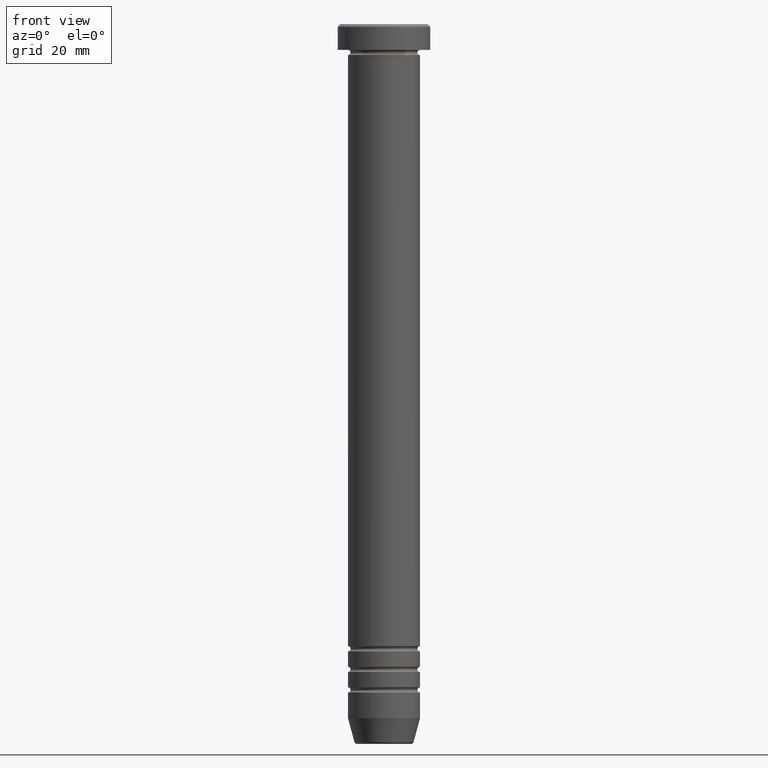
[diagram: clean part render]
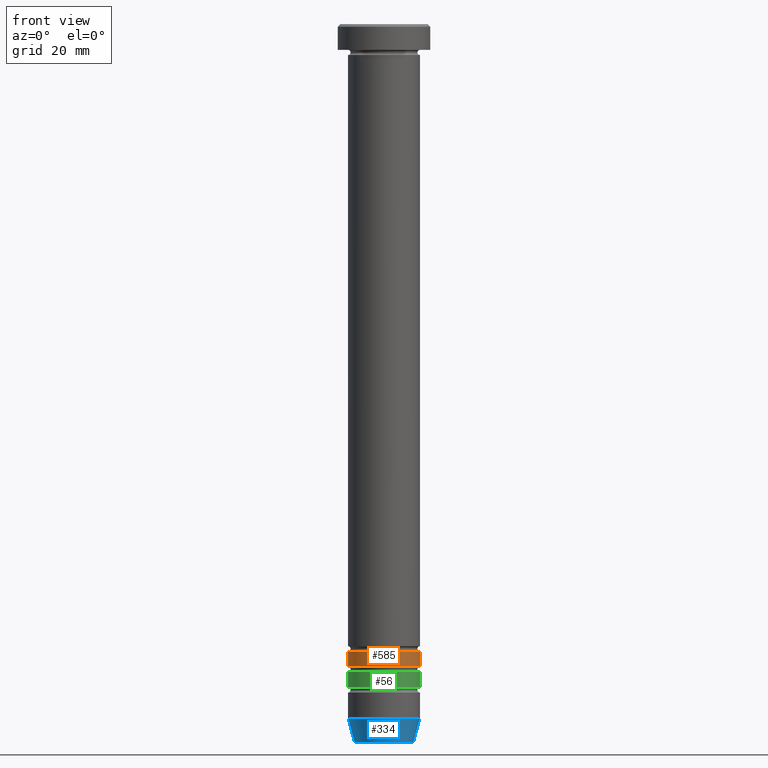
[diagram: same view with three faces highlighted in distinct colors, each labeled with its STEP entity id]
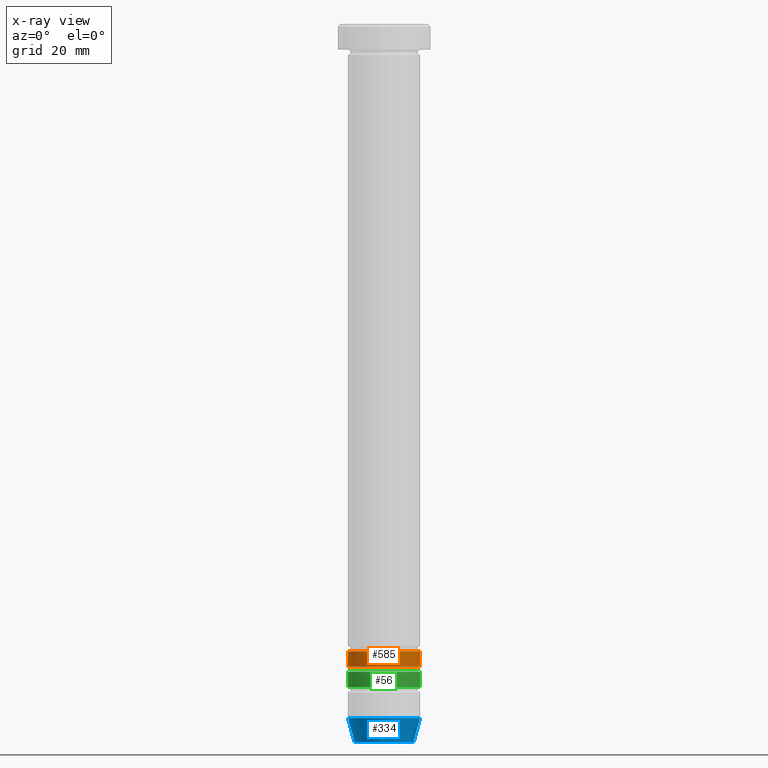
[diagram: x-ray of the same camera — body ghosted, the three highlighted faces saturated]
A machine part, front view with three faces highlighted in distinct colors.
The next image is the same camera in x-ray (body ghosted, the three faces saturated) — at least one of them is partly hidden behind the body in this view.
Their STEP definitions:

[orange] entity #585 — the highlighted cylindrical surface (edge-blend (fillet) strip) has radius 7 mm, axis along (-0, -0, 1).
#1 = CARTESIAN_POINT ( 'NONE',  ( 0.000000000000000000, 0.000000000000000000, -122.0000000000000000 ) ) ;
#23 = ORIENTED_EDGE ( 'NONE', *, *, #777, .F. ) ;
#35 = FACE_OUTER_BOUND ( 'NONE', #618, .T. ) ;
#39 = AXIS2_PLACEMENT_3D ( 'NONE', #619, #383, #1043 ) ;
#76 = CIRCLE ( 'NONE', #582, 7.000000000000000000 ) ;
#154 = CARTESIAN_POINT ( 'NONE',  ( 6.999999999999999112, 0.000000000000000000, 0.000000000000000000 ) ) ;
#155 = DIRECTION ( 'NONE',  ( -0.000000000000000000, -0.000000000000000000, 1.000000000000000000 ) ) ;
#193 = EDGE_CURVE ( 'NONE', #755, #435, #1020, .T. ) ;
#249 = LINE ( 'NONE', #154, #1044 ) ;
#278 = ORIENTED_EDGE ( 'NONE', *, *, #687, .F. ) ;
#308 = ORIENTED_EDGE ( 'NONE', *, *, #1013, .T. ) ;
#318 = LINE ( 'NONE', #650, #835 ) ;
#383 = DIRECTION ( 'NONE',  ( -0.000000000000000000, -0.000000000000000000, 1.000000000000000000 ) ) ;
#404 = VERTEX_POINT ( 'NONE', #439 ) ;
#435 = VERTEX_POINT ( 'NONE', #1000 ) ;
#439 = CARTESIAN_POINT ( 'NONE',  ( -7.000000000000000888, 8.572527594031474176E-16, -122.0000000000000000 ) ) ;
#462 = DIRECTION ( 'NONE',  ( -0.000000000000000000, -0.000000000000000000, 1.000000000000000000 ) ) ;
#483 = CARTESIAN_POINT ( 'NONE',  ( -6.999999999999998224, 8.572527594031471218E-16, -125.0000000000000000 ) ) ;
#582 = AXIS2_PLACEMENT_3D ( 'NONE', #1, #155, #741 ) ;
#585 = ADVANCED_FACE ( 'NONE', ( #35 ), #948, .T. ) ;
#617 = DIRECTION ( 'NONE',  ( 1.000000000000000000, 0.000000000000000000, 0.000000000000000000 ) ) ;
#618 = EDGE_LOOP ( 'NONE', ( #23, #1006, #308, #278 ) ) ;
#619 = CARTESIAN_POINT ( 'NONE',  ( 0.000000000000000000, 0.000000000000000000, -125.0000000000000000 ) ) ;
#648 = DIRECTION ( 'NONE',  ( -0.000000000000000000, -0.000000000000000000, 1.000000000000000000 ) ) ;
#650 = CARTESIAN_POINT ( 'NONE',  ( -6.999999999999999112, 8.572527594031472204E-16, 0.000000000000000000 ) ) ;
#652 = AXIS2_PLACEMENT_3D ( 'NONE', #1034, #462, #617 ) ;
#687 = EDGE_CURVE ( 'NONE', #404, #1007, #76, .T. ) ;
#741 = DIRECTION ( 'NONE',  ( 1.000000000000000000, 0.000000000000000000, 0.000000000000000000 ) ) ;
#755 = VERTEX_POINT ( 'NONE', #483 ) ;
#777 = EDGE_CURVE ( 'NONE', #755, #404, #318, .T. ) ;
#835 = VECTOR ( 'NONE', #890, 1000.000000000000000 ) ;
#890 = DIRECTION ( 'NONE',  ( -0.000000000000000000, -0.000000000000000000, 1.000000000000000000 ) ) ;
#896 = CARTESIAN_POINT ( 'NONE',  ( 7.000000000000000000, 0.000000000000000000, -122.0000000000000000 ) ) ;
#948 = CYLINDRICAL_SURFACE ( 'NONE', #652, 6.999999999999999112 ) ;
#1000 = CARTESIAN_POINT ( 'NONE',  ( 6.999999999999998224, 0.000000000000000000, -125.0000000000000000 ) ) ;
#1006 = ORIENTED_EDGE ( 'NONE', *, *, #193, .T. ) ;
#1007 = VERTEX_POINT ( 'NONE', #896 ) ;
#1013 = EDGE_CURVE ( 'NONE', #435, #1007, #249, .T. ) ;
#1020 = CIRCLE ( 'NONE', #39, 6.999999999999998224 ) ;
#1034 = CARTESIAN_POINT ( 'NONE',  ( 0.000000000000000000, 0.000000000000000000, 0.000000000000000000 ) ) ;
#1043 = DIRECTION ( 'NONE',  ( 1.000000000000000000, 0.000000000000000000, 0.000000000000000000 ) ) ;
#1044 = VECTOR ( 'NONE', #648, 1000.000000000000000 ) ;

[blue] entity #334 — the highlighted conical surface has half-angle 15 deg.
#57 = AXIS2_PLACEMENT_3D ( 'NONE', #81, #157, #824 ) ;
#73 = AXIS2_PLACEMENT_3D ( 'NONE', #657, #581, #669 ) ;
#81 = CARTESIAN_POINT ( 'NONE',  ( 0.000000000000000000, 0.000000000000000000, -139.6294095225512706 ) ) ;
#92 = CARTESIAN_POINT ( 'NONE',  ( 7.000000000000000000, 0.000000000000000000, -134.9999999999999716 ) ) ;
#151 = CARTESIAN_POINT ( 'NONE',  ( -5.660254037844373087, 6.931811989806993503E-16, -140.0000000000000000 ) ) ;
#157 = DIRECTION ( 'NONE',  ( -0.000000000000000000, -0.000000000000000000, 1.000000000000000000 ) ) ;
#181 = DIRECTION ( 'NONE',  ( 1.000000000000000000, 0.000000000000000000, 0.000000000000000000 ) ) ;
#208 = CARTESIAN_POINT ( 'NONE',  ( 5.759553456999428001, 0.000000000000000000, -139.6294095225512706 ) ) ;
#216 = EDGE_CURVE ( 'NONE', #947, #944, #508, .T. ) ;
#261 = EDGE_CURVE ( 'NONE', #947, #620, #935, .T. ) ;
#286 = VECTOR ( 'NONE', #314, 1000.000000000000114 ) ;
#305 = EDGE_LOOP ( 'NONE', ( #409, #742, #768, #422 ) ) ;
#314 = DIRECTION ( 'NONE',  ( 0.2588190451025215166, 0.000000000000000000, 0.9659258262890679791 ) ) ;
#334 = ADVANCED_FACE ( 'NONE', ( #983 ), #833, .T. ) ;
#388 = EDGE_CURVE ( 'NONE', #944, #807, #1021, .T. ) ;
#398 = CARTESIAN_POINT ( 'NONE',  ( 5.660254037844373087, 0.000000000000000000, -140.0000000000000000 ) ) ;
#406 = DIRECTION ( 'NONE',  ( -0.2588190451025215166, 3.169619151431774802E-17, 0.9659258262890679791 ) ) ;
#409 = ORIENTED_EDGE ( 'NONE', *, *, #216, .F. ) ;
#414 = CARTESIAN_POINT ( 'NONE',  ( -5.759553456999428001, 7.812973149831946843E-16, -139.6294095225512706 ) ) ;
#422 = ORIENTED_EDGE ( 'NONE', *, *, #388, .F. ) ;
#449 = DIRECTION ( 'NONE',  ( -0.000000000000000000, -0.000000000000000000, 1.000000000000000000 ) ) ;
#508 = LINE ( 'NONE', #151, #598 ) ;
#521 = CARTESIAN_POINT ( 'NONE',  ( 0.000000000000000000, 0.000000000000000000, -134.9999999999999716 ) ) ;
#581 = DIRECTION ( 'NONE',  ( -0.000000000000000000, -0.000000000000000000, 1.000000000000000000 ) ) ;
#598 = VECTOR ( 'NONE', #406, 1000.000000000000114 ) ;
#620 = VERTEX_POINT ( 'NONE', #208 ) ;
#657 = CARTESIAN_POINT ( 'NONE',  ( 0.000000000000000000, 0.000000000000000000, -140.0000000000000000 ) ) ;
#669 = DIRECTION ( 'NONE',  ( 1.000000000000000000, 0.000000000000000000, 0.000000000000000000 ) ) ;
#710 = AXIS2_PLACEMENT_3D ( 'NONE', #521, #449, #181 ) ;
#742 = ORIENTED_EDGE ( 'NONE', *, *, #261, .T. ) ;
#744 = EDGE_CURVE ( 'NONE', #620, #807, #803, .T. ) ;
#768 = ORIENTED_EDGE ( 'NONE', *, *, #744, .T. ) ;
#803 = LINE ( 'NONE', #398, #286 ) ;
#807 = VERTEX_POINT ( 'NONE', #92 ) ;
#824 = DIRECTION ( 'NONE',  ( -1.000000000000000000, 0.000000000000000000, 0.000000000000000000 ) ) ;
#833 = CONICAL_SURFACE ( 'NONE', #73, 5.660254037844373087, 0.2617993877991502960 ) ;
#935 = CIRCLE ( 'NONE', #57, 5.759553456999428001 ) ;
#944 = VERTEX_POINT ( 'NONE', #979 ) ;
#947 = VERTEX_POINT ( 'NONE', #414 ) ;
#979 = CARTESIAN_POINT ( 'NONE',  ( -7.000000000000000000, 8.572527594031473190E-16, -134.9999999999999716 ) ) ;
#983 = FACE_OUTER_BOUND ( 'NONE', #305, .T. ) ;
#1021 = CIRCLE ( 'NONE', #710, 7.000000000000000000 ) ;

[green] entity #56 — the highlighted cylindrical surface (edge-blend (fillet) strip) has radius 7 mm, axis along (-0, -0, 1).
#38 = DIRECTION ( 'NONE',  ( -0.000000000000000000, -0.000000000000000000, 1.000000000000000000 ) ) ;
#56 = ADVANCED_FACE ( 'NONE', ( #311 ), #792, .T. ) ;
#58 = AXIS2_PLACEMENT_3D ( 'NONE', #231, #38, #562 ) ;
#115 = CARTESIAN_POINT ( 'NONE',  ( 6.999999999999992895, 0.000000000000000000, -129.0000000000000000 ) ) ;
#189 = VERTEX_POINT ( 'NONE', #289 ) ;
#231 = CARTESIAN_POINT ( 'NONE',  ( 0.000000000000000000, 0.000000000000000000, -126.0000000000000000 ) ) ;
#245 = ORIENTED_EDGE ( 'NONE', *, *, #545, .T. ) ;
#289 = CARTESIAN_POINT ( 'NONE',  ( -7.000000000000000000, 8.572527594031472204E-16, -126.0000000000000000 ) ) ;
#306 = AXIS2_PLACEMENT_3D ( 'NONE', #557, #868, #1030 ) ;
#311 = FACE_OUTER_BOUND ( 'NONE', #892, .T. ) ;
#410 = VERTEX_POINT ( 'NONE', #600 ) ;
#427 = DIRECTION ( 'NONE',  ( -0.000000000000000000, -0.000000000000000000, 1.000000000000000000 ) ) ;
#486 = CARTESIAN_POINT ( 'NONE',  ( 0.000000000000000000, 0.000000000000000000, 0.000000000000000000 ) ) ;
#514 = CARTESIAN_POINT ( 'NONE',  ( 7.000000000000000000, 0.000000000000000000, -126.0000000000000000 ) ) ;
#538 = DIRECTION ( 'NONE',  ( -0.000000000000000000, -0.000000000000000000, 1.000000000000000000 ) ) ;
#541 = VERTEX_POINT ( 'NONE', #115 ) ;
#545 = EDGE_CURVE ( 'NONE', #410, #541, #636, .T. ) ;
#556 = VECTOR ( 'NONE', #427, 1000.000000000000000 ) ;
#557 = CARTESIAN_POINT ( 'NONE',  ( 0.000000000000000000, 0.000000000000000000, -129.0000000000000000 ) ) ;
#561 = EDGE_CURVE ( 'NONE', #541, #969, #1042, .T. ) ;
#562 = DIRECTION ( 'NONE',  ( 1.000000000000000000, 0.000000000000000000, 0.000000000000000000 ) ) ;
#573 = CARTESIAN_POINT ( 'NONE',  ( -6.999999999999996447, 8.572527594031468259E-16, 0.000000000000000000 ) ) ;
#600 = CARTESIAN_POINT ( 'NONE',  ( -6.999999999999992895, 8.572527594031466287E-16, -129.0000000000000000 ) ) ;
#630 = EDGE_CURVE ( 'NONE', #189, #969, #1024, .T. ) ;
#636 = CIRCLE ( 'NONE', #306, 6.999999999999992895 ) ;
#685 = ORIENTED_EDGE ( 'NONE', *, *, #985, .F. ) ;
#774 = CARTESIAN_POINT ( 'NONE',  ( 6.999999999999996447, 0.000000000000000000, 0.000000000000000000 ) ) ;
#792 = CYLINDRICAL_SURFACE ( 'NONE', #817, 6.999999999999996447 ) ;
#817 = AXIS2_PLACEMENT_3D ( 'NONE', #486, #863, #1022 ) ;
#863 = DIRECTION ( 'NONE',  ( -0.000000000000000000, -0.000000000000000000, 1.000000000000000000 ) ) ;
#868 = DIRECTION ( 'NONE',  ( -0.000000000000000000, -0.000000000000000000, 1.000000000000000000 ) ) ;
#892 = EDGE_LOOP ( 'NONE', ( #685, #245, #1033, #981 ) ) ;
#969 = VERTEX_POINT ( 'NONE', #514 ) ;
#980 = LINE ( 'NONE', #573, #556 ) ;
#981 = ORIENTED_EDGE ( 'NONE', *, *, #630, .F. ) ;
#985 = EDGE_CURVE ( 'NONE', #410, #189, #980, .T. ) ;
#1022 = DIRECTION ( 'NONE',  ( 1.000000000000000000, 0.000000000000000000, 0.000000000000000000 ) ) ;
#1024 = CIRCLE ( 'NONE', #58, 7.000000000000000000 ) ;
#1030 = DIRECTION ( 'NONE',  ( 1.000000000000000000, 0.000000000000000000, 0.000000000000000000 ) ) ;
#1033 = ORIENTED_EDGE ( 'NONE', *, *, #561, .T. ) ;
#1041 = VECTOR ( 'NONE', #538, 1000.000000000000000 ) ;
#1042 = LINE ( 'NONE', #774, #1041 ) ;